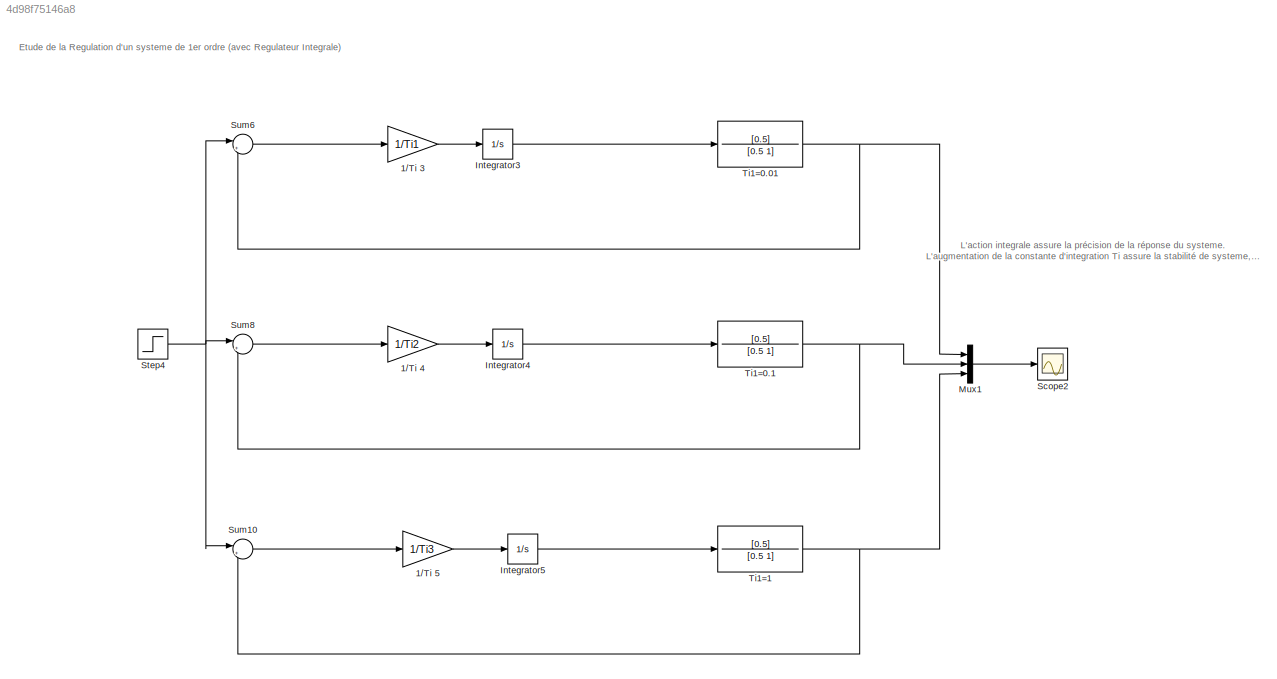
MODEL slx_4d98f75146a8
KIND model
CONFIG AbsTol = auto
CONFIG EnableMultiTasking = off
CONFIG FixedStep = auto
CONFIG MaxStep = auto
CONFIG MinStep = auto
CONFIG RelTol = 1e-3
CONFIG SampleTimeConstraint = Unconstrained
CONFIG Solver = VariableStepAuto
CONFIG SolverName = VariableStepAuto
CONFIG StartTime = 0.0
CONFIG StopTime = 20
BLOCK [Gain] 1//Ti 3
  Gain = 1/Ti1
  OutDataTypeStr = Inherit: Inherit via internal rule
  ParamDataTypeStr = Inherit: Inherit via internal rule
  SaturateOnIntegerOverflow = off
BLOCK [Gain] 1//Ti 4
  Gain = 1/Ti2
  OutDataTypeStr = Inherit: Inherit via internal rule
  ParamDataTypeStr = Inherit: Inherit via internal rule
  SaturateOnIntegerOverflow = off
BLOCK [Gain] 1//Ti 5
  Gain = 1/Ti3
  OutDataTypeStr = Inherit: Inherit via internal rule
  ParamDataTypeStr = Inherit: Inherit via internal rule
  SaturateOnIntegerOverflow = off
BLOCK [Integrator] Integrator3
  Ports = [1, 1]
BLOCK [Integrator] Integrator4
  Ports = [1, 1]
BLOCK [Integrator] Integrator5
  Ports = [1, 1]
BLOCK [Mux] Mux1
  DisplayOption = bar
  Inputs = 3
  Ports = [3, 1]
BLOCK [Scope] Scope2
  NumInputPorts = 1
  Ports = [1]
  ScopeSpecificationString = Simulink.scopes.TimeScopeBlockCfg('CurrentConfiguration', extmgr.ConfigurationSet(extmgr.Configuration('Core','General UI',true),extmgr.Configuration('Core','Source UI',true),extmgr.Configuration('Sources','WiredSimulink',true,'DataLoggingVariableName','ScopeData1'),extmgr.Configuration('Visuals','Time Domain',true,'SerializedDisplays',{struct('MinYLimReal','-0.20605','MaxYLimReal','1.85449','YLab...<+1434ch>
BLOCK [Step] Step4
  SampleTime = 0
  Time = 0
BLOCK [Sum] Sum10
  IconShape = round
  InputSameDT = off
  Inputs = |+-
  OutDataTypeStr = Inherit: Inherit via internal rule
  Ports = [2, 1]
  SaturateOnIntegerOverflow = off
BLOCK [Sum] Sum6
  IconShape = round
  InputSameDT = off
  Inputs = |+-
  OutDataTypeStr = Inherit: Inherit via internal rule
  Ports = [2, 1]
  SaturateOnIntegerOverflow = off
BLOCK [Sum] Sum8
  IconShape = round
  InputSameDT = off
  Inputs = |+-
  OutDataTypeStr = Inherit: Inherit via internal rule
  Ports = [2, 1]
  SaturateOnIntegerOverflow = off
BLOCK [TransferFcn] Ti1=0.01
  Denominator = [0.5 1]
  Numerator = [0.5]
BLOCK [TransferFcn] Ti1=0.1
  Denominator = [0.5 1]
  Numerator = [0.5]
BLOCK [TransferFcn] Ti1=1
  Denominator = [0.5 1]
  Numerator = [0.5]
ANNOTATION (root): L'action integrale assure la précision de la réponse du systeme. L'augmentation de la constante d'integration Ti assure la stabilité de systeme, provoque une dimunition des pulsations. mais ça aussi provoque une diminution de la rapidité du systeme.
ANNOTATION (root): Etude de la Regulation d'un systeme de 1er ordre (avec Regulateur Integrale)
LINE 1//Ti 3:1 -> Integrator3:1
LINE 1//Ti 4:1 -> Integrator4:1
LINE 1//Ti 5:1 -> Integrator5:1
LINE Integrator3:1 -> Ti1=0.01:1
LINE Integrator4:1 -> Ti1=0.1:1
LINE Integrator5:1 -> Ti1=1:1
LINE Mux1:1 -> Scope2:1
NET Step4:1 -> Sum10:1, Sum6:1, Sum8:1
LINE Sum10:1 -> 1//Ti 5:1
LINE Sum6:1 -> 1//Ti 3:1
LINE Sum8:1 -> 1//Ti 4:1
NET Ti1=0.01:1 -> Mux1:1, Sum6:2
NET Ti1=0.1:1 -> Mux1:2, Sum8:2
NET Ti1=1:1 -> Mux1:3, Sum10:2
note: NET lines group one-source signal fan-out (src -> all destinations, sorted); 1:1 wires keep LINE
